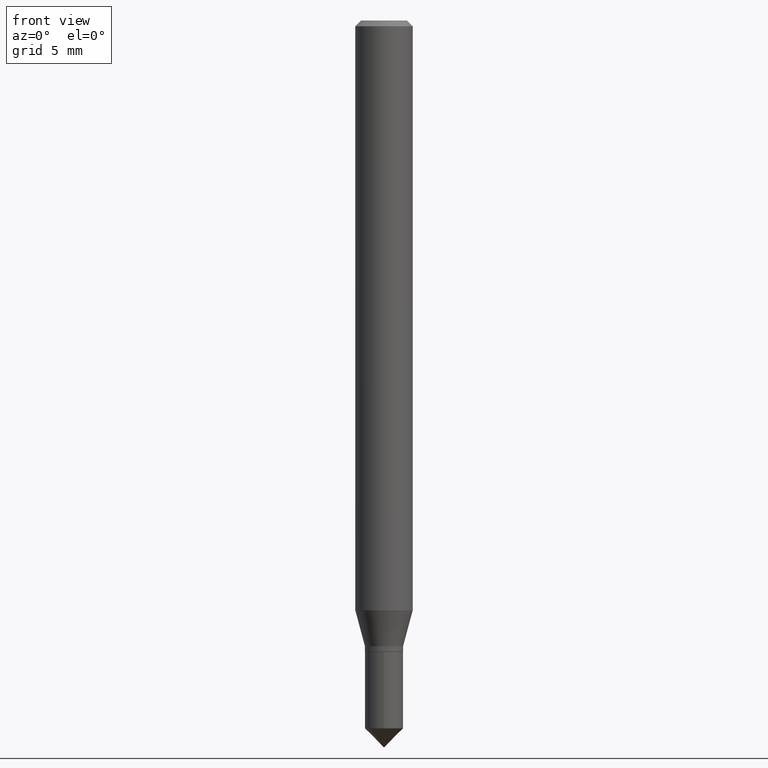
[diagram: clean part render]
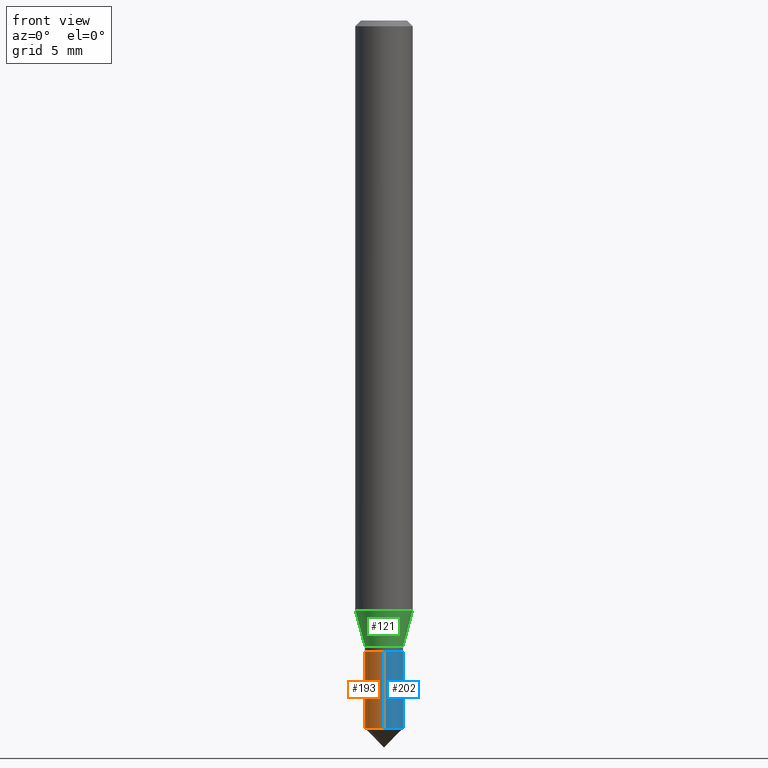
[diagram: same view with three faces highlighted in distinct colors, each labeled with its STEP entity id]
A machine part, front view with three faces highlighted in distinct colors.
Their STEP definitions:

[orange] entity #193 — the highlighted cylindrical surface (edge-blend (fillet) strip) has radius 0.9995 mm, axis along (-0, 0, 1).
#6 = FACE_OUTER_BOUND ( 'NONE', #302, .T. ) ;
#28 = LINE ( 'NONE', #331, #400 ) ;
#35 = EDGE_CURVE ( 'NONE', #381, #454, #289, .T. ) ;
#50 = CARTESIAN_POINT ( 'NONE',  ( 3.177153072995728757E-29, -4.536132555425014733E-15, -1.299199999999999910 ) ) ;
#67 = DIRECTION ( 'NONE',  ( -2.456664372604500601E-29, 3.475448650518548198E-15, 1.000000000000000000 ) ) ;
#78 = VECTOR ( 'NONE', #438, 39.37007874015748143 ) ;
#88 = VERTEX_POINT ( 'NONE', #444 ) ;
#91 = EDGE_CURVE ( 'NONE', #454, #88, #482, .T. ) ;
#98 = CARTESIAN_POINT ( 'NONE',  ( -2.747795813669188758E-16, -0.03935000000000507536, -1.456749999999999767 ) ) ;
#154 = DIRECTION ( 'NONE',  ( -2.456664372604500881E-29, 3.475448650518548198E-15, 1.000000000000000000 ) ) ;
#162 = AXIS2_PLACEMENT_3D ( 'NONE', #257, #67, #364 ) ;
#167 = DIRECTION ( 'NONE',  ( -2.456664372604500601E-29, 3.475448650518548198E-15, 1.000000000000000000 ) ) ;
#181 = ORIENTED_EDGE ( 'NONE', *, *, #35, .F. ) ;
#193 = ADVANCED_FACE ( 'NONE', ( #6 ), #204, .T. ) ;
#197 = DIRECTION ( 'NONE',  ( -6.982962677686266711E-15, -1.000000000000000000, 6.942434545525446301E-15 ) ) ;
#204 = CYLINDRICAL_SURFACE ( 'NONE', #376, 0.03935000000000000303 ) ;
#245 = AXIS2_PLACEMENT_3D ( 'NONE', #380, #306, #197 ) ;
#257 = CARTESIAN_POINT ( 'NONE',  ( 3.564200544899568706E-29, -5.083689490314212442E-15, -1.456749999999999989 ) ) ;
#262 = CARTESIAN_POINT ( 'NONE',  ( 2.795985665216350420E-16, 0.03934999999999547193, -1.299200000000000133 ) ) ;
#273 = CIRCLE ( 'NONE', #162, 0.03935000000000000303 ) ;
#289 = LINE ( 'NONE', #474, #78 ) ;
#300 = DIRECTION ( 'NONE',  ( -6.982962677686266711E-15, -1.000000000000000000, 6.942434545525446301E-15 ) ) ;
#302 = EDGE_LOOP ( 'NONE', ( #181, #363, #343, #431 ) ) ;
#306 = DIRECTION ( 'NONE',  ( -2.456664372604500601E-29, 3.475448650518548198E-15, 1.000000000000000000 ) ) ;
#331 = CARTESIAN_POINT ( 'NONE',  ( -2.747795813669228201E-16, -0.03935000000000453413, -1.299199999999999688 ) ) ;
#343 = ORIENTED_EDGE ( 'NONE', *, *, #483, .T. ) ;
#346 = VERTEX_POINT ( 'NONE', #98 ) ;
#363 = ORIENTED_EDGE ( 'NONE', *, *, #473, .T. ) ;
#364 = DIRECTION ( 'NONE',  ( -6.982962677686266711E-15, -1.000000000000000000, 6.942434545525446301E-15 ) ) ;
#369 = CARTESIAN_POINT ( 'NONE',  ( 2.795985665216350420E-16, 0.03934999999999491682, -1.456750000000000211 ) ) ;
#376 = AXIS2_PLACEMENT_3D ( 'NONE', #50, #167, #300 ) ;
#380 = CARTESIAN_POINT ( 'NONE',  ( 3.177153072995728757E-29, -4.536132555425014733E-15, -1.299199999999999910 ) ) ;
#381 = VERTEX_POINT ( 'NONE', #369 ) ;
#400 = VECTOR ( 'NONE', #154, 39.37007874015748143 ) ;
#431 = ORIENTED_EDGE ( 'NONE', *, *, #91, .F. ) ;
#438 = DIRECTION ( 'NONE',  ( -2.456664372604500881E-29, 3.475448650518548198E-15, 1.000000000000000000 ) ) ;
#444 = CARTESIAN_POINT ( 'NONE',  ( -2.747795813669228201E-16, -0.03935000000000453413, -1.299199999999999688 ) ) ;
#454 = VERTEX_POINT ( 'NONE', #262 ) ;
#473 = EDGE_CURVE ( 'NONE', #381, #346, #273, .T. ) ;
#474 = CARTESIAN_POINT ( 'NONE',  ( 2.795985665216311470E-16, 0.03934999999999547193, -1.299200000000000133 ) ) ;
#482 = CIRCLE ( 'NONE', #245, 0.03935000000000000303 ) ;
#483 = EDGE_CURVE ( 'NONE', #346, #88, #28, .T. ) ;

[blue] entity #202 — the highlighted cylindrical surface (edge-blend (fillet) strip) has radius 0.9995 mm, axis along (-0, 0, 1).
#28 = LINE ( 'NONE', #331, #400 ) ;
#35 = EDGE_CURVE ( 'NONE', #381, #454, #289, .T. ) ;
#57 = CIRCLE ( 'NONE', #471, 0.03935000000000000303 ) ;
#78 = VECTOR ( 'NONE', #438, 39.37007874015748143 ) ;
#88 = VERTEX_POINT ( 'NONE', #444 ) ;
#93 = AXIS2_PLACEMENT_3D ( 'NONE', #238, #429, #467 ) ;
#96 = DIRECTION ( 'NONE',  ( -2.456664372604500601E-29, 3.475448650518548198E-15, 1.000000000000000000 ) ) ;
#98 = CARTESIAN_POINT ( 'NONE',  ( -2.747795813669188758E-16, -0.03935000000000507536, -1.456749999999999767 ) ) ;
#119 = EDGE_LOOP ( 'NONE', ( #283, #263, #151, #123 ) ) ;
#123 = ORIENTED_EDGE ( 'NONE', *, *, #483, .F. ) ;
#137 = DIRECTION ( 'NONE',  ( -6.982962677686266711E-15, -1.000000000000000000, 6.942434545525446301E-15 ) ) ;
#151 = ORIENTED_EDGE ( 'NONE', *, *, #330, .F. ) ;
#154 = DIRECTION ( 'NONE',  ( -2.456664372604500881E-29, 3.475448650518548198E-15, 1.000000000000000000 ) ) ;
#202 = ADVANCED_FACE ( 'NONE', ( #206 ), #347, .T. ) ;
#206 = FACE_OUTER_BOUND ( 'NONE', #119, .T. ) ;
#210 = CARTESIAN_POINT ( 'NONE',  ( 3.177153072995728757E-29, -4.536132555425014733E-15, -1.299199999999999910 ) ) ;
#216 = AXIS2_PLACEMENT_3D ( 'NONE', #210, #96, #137 ) ;
#238 = CARTESIAN_POINT ( 'NONE',  ( 3.177153072995728757E-29, -4.536132555425014733E-15, -1.299199999999999910 ) ) ;
#241 = CIRCLE ( 'NONE', #216, 0.03935000000000000303 ) ;
#262 = CARTESIAN_POINT ( 'NONE',  ( 2.795985665216350420E-16, 0.03934999999999547193, -1.299200000000000133 ) ) ;
#263 = ORIENTED_EDGE ( 'NONE', *, *, #35, .T. ) ;
#283 = ORIENTED_EDGE ( 'NONE', *, *, #379, .T. ) ;
#289 = LINE ( 'NONE', #474, #78 ) ;
#330 = EDGE_CURVE ( 'NONE', #88, #454, #241, .T. ) ;
#331 = CARTESIAN_POINT ( 'NONE',  ( -2.747795813669228201E-16, -0.03935000000000453413, -1.299199999999999688 ) ) ;
#332 = CARTESIAN_POINT ( 'NONE',  ( 3.564200544899568706E-29, -5.083689490314212442E-15, -1.456749999999999989 ) ) ;
#336 = DIRECTION ( 'NONE',  ( -6.982962677686266711E-15, -1.000000000000000000, 6.942434545525446301E-15 ) ) ;
#346 = VERTEX_POINT ( 'NONE', #98 ) ;
#347 = CYLINDRICAL_SURFACE ( 'NONE', #93, 0.03935000000000000303 ) ;
#369 = CARTESIAN_POINT ( 'NONE',  ( 2.795985665216350420E-16, 0.03934999999999491682, -1.456750000000000211 ) ) ;
#379 = EDGE_CURVE ( 'NONE', #346, #381, #57, .T. ) ;
#381 = VERTEX_POINT ( 'NONE', #369 ) ;
#400 = VECTOR ( 'NONE', #154, 39.37007874015748143 ) ;
#429 = DIRECTION ( 'NONE',  ( -2.456664372604500601E-29, 3.475448650518548198E-15, 1.000000000000000000 ) ) ;
#438 = DIRECTION ( 'NONE',  ( -2.456664372604500881E-29, 3.475448650518548198E-15, 1.000000000000000000 ) ) ;
#444 = CARTESIAN_POINT ( 'NONE',  ( -2.747795813669228201E-16, -0.03935000000000453413, -1.299199999999999688 ) ) ;
#452 = DIRECTION ( 'NONE',  ( -2.456664372604500601E-29, 3.475448650518548198E-15, 1.000000000000000000 ) ) ;
#454 = VERTEX_POINT ( 'NONE', #262 ) ;
#467 = DIRECTION ( 'NONE',  ( -6.982962677686266711E-15, -1.000000000000000000, 6.942434545525446301E-15 ) ) ;
#471 = AXIS2_PLACEMENT_3D ( 'NONE', #332, #452, #336 ) ;
#474 = CARTESIAN_POINT ( 'NONE',  ( 2.795985665216311470E-16, 0.03934999999999547193, -1.299200000000000133 ) ) ;
#483 = EDGE_CURVE ( 'NONE', #346, #88, #28, .T. ) ;

[green] entity #121 — the highlighted conical surface has half-angle 15 deg.
#2 = ORIENTED_EDGE ( 'NONE', *, *, #373, .T. ) ;
#4 = DIRECTION ( 'NONE',  ( -0.2588190451025212391, 5.211531920934549464E-15, 0.9659258262890679791 ) ) ;
#8 = FACE_OUTER_BOUND ( 'NONE', #393, .T. ) ;
#9 = LINE ( 'NONE', #272, #278 ) ;
#31 = CIRCLE ( 'NONE', #265, 0.05905000000000015098 ) ;
#42 = DIRECTION ( 'NONE',  ( 1.000000000000000000, -6.982962677686271444E-15, 0.000000000000000000 ) ) ;
#44 = VERTEX_POINT ( 'NONE', #72 ) ;
#52 = CARTESIAN_POINT ( 'NONE',  ( 3.148296541082745256E-29, -4.494933075626666460E-15, -1.287400000000000100 ) ) ;
#70 = DIRECTION ( 'NONE',  ( 1.000000000000000000, -6.982962677686269077E-15, 0.000000000000000000 ) ) ;
#72 = CARTESIAN_POINT ( 'NONE',  ( 0.05905000000000015098, -4.650578422464288085E-15, -1.213878599090892685 ) ) ;
#83 = VERTEX_POINT ( 'NONE', #481 ) ;
#114 = CARTESIAN_POINT ( 'NONE',  ( 2.968502248572491582E-29, -4.238234476346912376E-15, -1.213878599090892685 ) ) ;
#115 = VERTEX_POINT ( 'NONE', #131 ) ;
#116 = DIRECTION ( 'NONE',  ( -2.445468806185136597E-29, 3.491481338843145583E-15, 1.000000000000000000 ) ) ;
#121 = ADVANCED_FACE ( 'NONE', ( #8 ), #185, .T. ) ;
#125 = DIRECTION ( 'NONE',  ( 1.000000000000000000, -6.982962677686269077E-15, 0.000000000000000000 ) ) ;
#131 = CARTESIAN_POINT ( 'NONE',  ( 0.03935000000000000303, -4.769712656993620588E-15, -1.287400000000000100 ) ) ;
#150 = EDGE_CURVE ( 'NONE', #115, #44, #9, .T. ) ;
#155 = AXIS2_PLACEMENT_3D ( 'NONE', #451, #116, #70 ) ;
#158 = DIRECTION ( 'NONE',  ( -2.445468806185136597E-29, 3.491481338843145583E-15, 1.000000000000000000 ) ) ;
#161 = EDGE_CURVE ( 'NONE', #83, #371, #207, .T. ) ;
#172 = VECTOR ( 'NONE', #4, 39.37007874015748854 ) ;
#185 = CONICAL_SURFACE ( 'NONE', #349, 0.03935000000000000303, 0.2617993877991499629 ) ;
#207 = LINE ( 'NONE', #275, #172 ) ;
#265 = AXIS2_PLACEMENT_3D ( 'NONE', #114, #158, #42 ) ;
#271 = ORIENTED_EDGE ( 'NONE', *, *, #426, .F. ) ;
#272 = CARTESIAN_POINT ( 'NONE',  ( 0.03935000000000000303, -4.769712656993620588E-15, -1.287400000000000100 ) ) ;
#274 = ORIENTED_EDGE ( 'NONE', *, *, #150, .T. ) ;
#275 = CARTESIAN_POINT ( 'NONE',  ( -0.03935000000000000303, -4.215334509105066276E-15, -1.287400000000000100 ) ) ;
#278 = VECTOR ( 'NONE', #382, 39.37007874015748854 ) ;
#295 = CARTESIAN_POINT ( 'NONE',  ( -0.05905000000000015098, -3.818658990880572095E-15, -1.213878599090892685 ) ) ;
#298 = ORIENTED_EDGE ( 'NONE', *, *, #161, .F. ) ;
#349 = AXIS2_PLACEMENT_3D ( 'NONE', #52, #461, #125 ) ;
#371 = VERTEX_POINT ( 'NONE', #295 ) ;
#373 = EDGE_CURVE ( 'NONE', #83, #115, #375, .T. ) ;
#375 = CIRCLE ( 'NONE', #155, 0.03935000000000000303 ) ;
#382 = DIRECTION ( 'NONE',  ( 0.2588190451025212391, 1.565188264969622362E-15, 0.9659258262890679791 ) ) ;
#393 = EDGE_LOOP ( 'NONE', ( #298, #2, #274, #271 ) ) ;
#426 = EDGE_CURVE ( 'NONE', #371, #44, #31, .T. ) ;
#451 = CARTESIAN_POINT ( 'NONE',  ( 3.148296541082745256E-29, -4.494933075626666460E-15, -1.287400000000000100 ) ) ;
#461 = DIRECTION ( 'NONE',  ( -2.445468806185136597E-29, 3.491481338843145583E-15, 1.000000000000000000 ) ) ;
#481 = CARTESIAN_POINT ( 'NONE',  ( -0.03935000000000000303, -4.235061378669530450E-15, -1.287400000000000100 ) ) ;